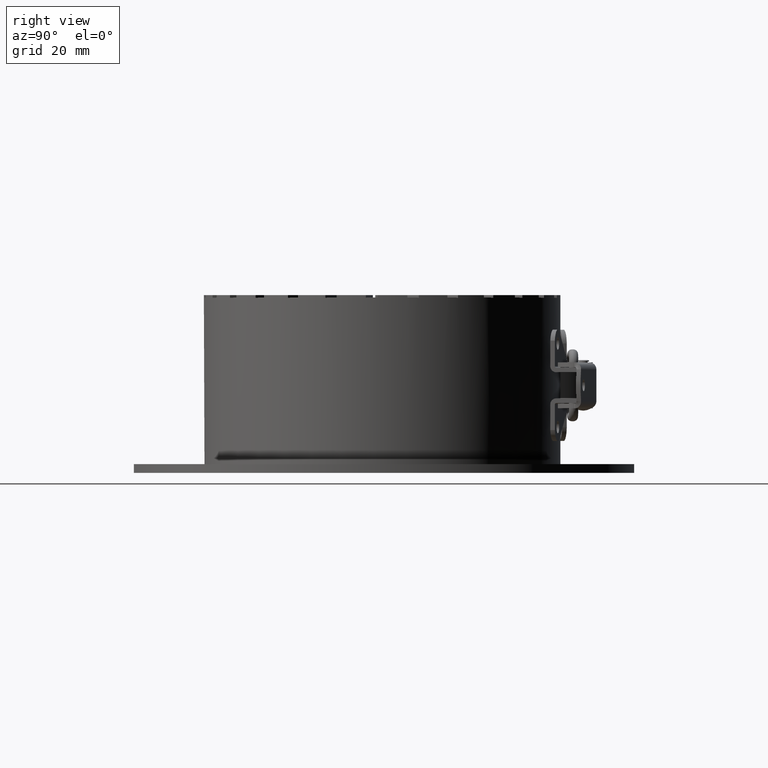
[diagram: clean part render]
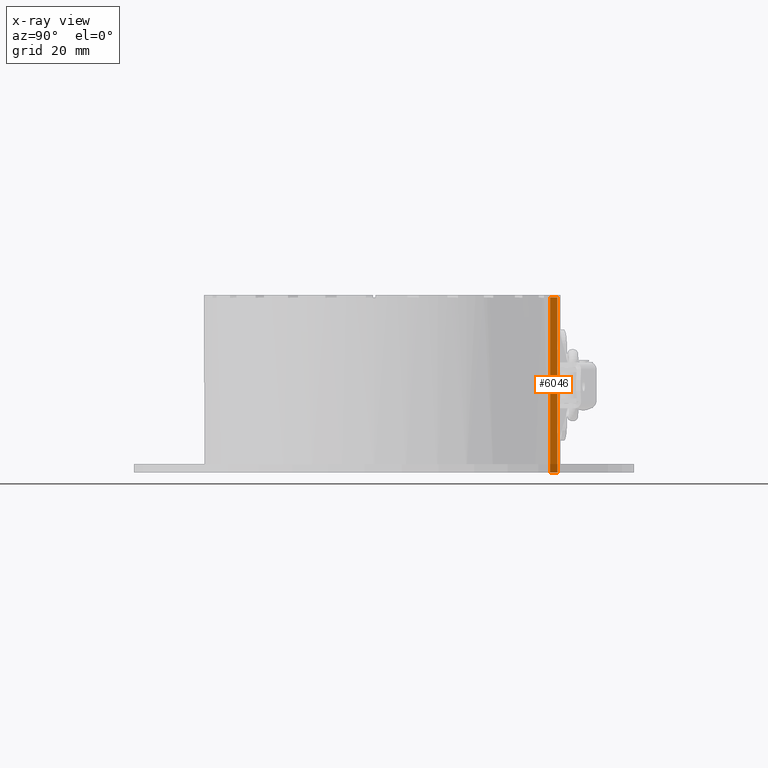
[diagram: x-ray — body ghosted, one internal face saturated and labeled with its STEP entity id]
A machine part, right view, then the same camera in x-ray: the body is ghosted and one INTERNAL B-rep face — a face not visible from any outside direction — is saturated and labeled: STEP entity #6046.
In plain terms, the highlighted planar face has unit normal (1, 0, 0).
Its self-contained STEP definition (entity closure, byte-faithful):
#6007=CARTESIAN_POINT('',(-2.000000000000008,57.465206864675949,-29.950000000000003));
#6008=DIRECTION('',(1.0,0.0,0.0));
#6009=DIRECTION('',(0.0,1.0,0.0));
#6010=AXIS2_PLACEMENT_3D('',#6007,#6008,#6009);
#6011=PLANE('',#6010);
#6012=CARTESIAN_POINT('',(-2.000000000000008,57.465206864675949,-29.950000000000003));
#6013=VERTEX_POINT('',#6012);
#6014=CARTESIAN_POINT('',(-2.000000000000008,59.966657402259798,-29.950000000000003));
#6015=VERTEX_POINT('',#6014);
#6016=CARTESIAN_POINT('',(-2.000000000000008,57.465206864675949,-29.950000000000003));
#6017=DIRECTION('',(0.0,1.0,0.0));
#6018=VECTOR('',#6017,2.50145053758385);
#6019=LINE('',#6016,#6018);
#6020=EDGE_CURVE('',#6013,#6015,#6019,.T.);
#6021=ORIENTED_EDGE('',*,*,#6020,.T.);
#6022=CARTESIAN_POINT('',(-2.000000000000007,59.966657402259798,30.049999999999997));
#6023=VERTEX_POINT('',#6022);
#6024=CARTESIAN_POINT('',(-2.000000000000008,59.966657402259798,-29.950000000000003));
#6025=DIRECTION('',(0.0,0.0,1.0));
#6026=VECTOR('',#6025,60.0);
#6027=LINE('',#6024,#6026);
#6028=EDGE_CURVE('',#6015,#6023,#6027,.T.);
#6029=ORIENTED_EDGE('',*,*,#6028,.T.);
#6030=CARTESIAN_POINT('',(-2.000000000000006,57.465206864675949,30.049999999999997));
#6031=VERTEX_POINT('',#6030);
#6032=CARTESIAN_POINT('',(-2.000000000000006,57.465206864675949,30.049999999999997));
#6033=DIRECTION('',(0.0,1.0,0.0));
#6034=VECTOR('',#6033,2.50145053758385);
#6035=LINE('',#6032,#6034);
#6036=EDGE_CURVE('',#6031,#6023,#6035,.T.);
#6037=ORIENTED_EDGE('',*,*,#6036,.F.);
#6038=CARTESIAN_POINT('',(-2.000000000000008,57.465206864675949,-29.950000000000003));
#6039=DIRECTION('',(0.0,0.0,1.0));
#6040=VECTOR('',#6039,60.0);
#6041=LINE('',#6038,#6040);
#6042=EDGE_CURVE('',#6013,#6031,#6041,.T.);
#6043=ORIENTED_EDGE('',*,*,#6042,.F.);
#6044=EDGE_LOOP('',(#6021,#6029,#6037,#6043));
#6045=FACE_OUTER_BOUND('',#6044,.T.);
#6046=ADVANCED_FACE('',(#6045),#6011,.T.);